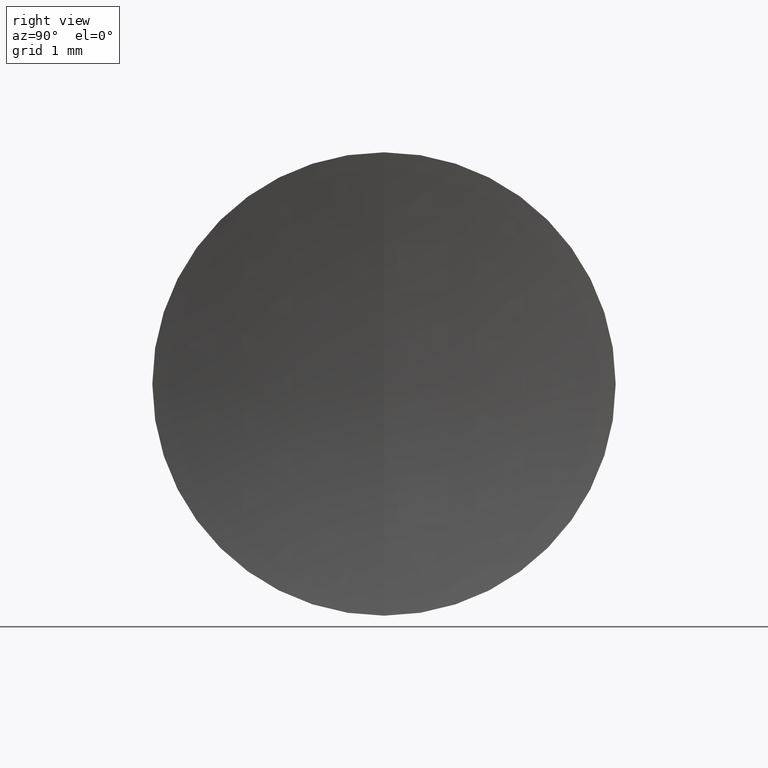
[diagram: clean part render]
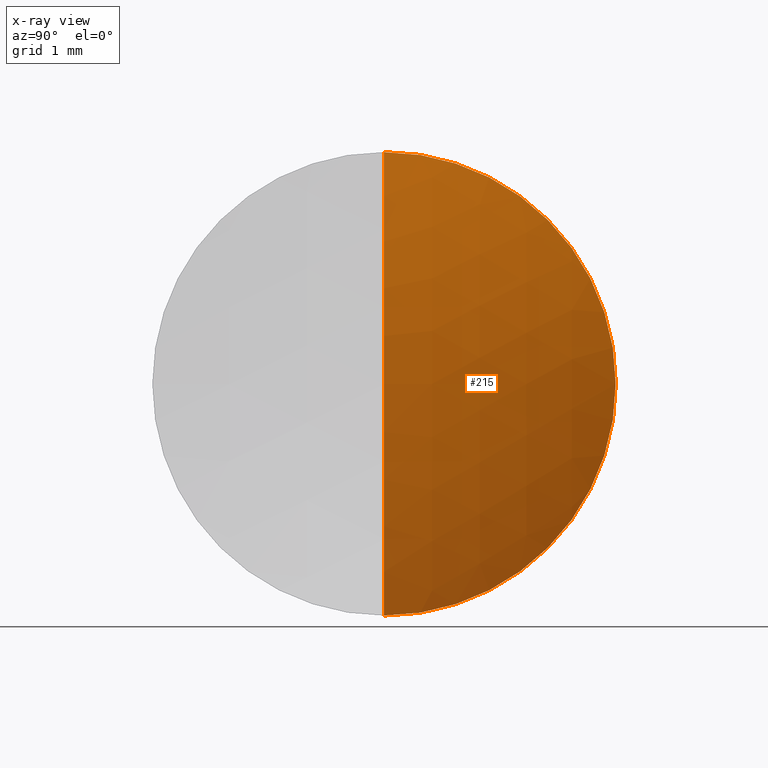
[diagram: x-ray — body ghosted, one internal face saturated and labeled with its STEP entity id]
A machine part, right view, then the same camera in x-ray: the body is ghosted and one INTERNAL B-rep face — a face not visible from any outside direction — is saturated and labeled: STEP entity #215.
In plain terms, the highlighted spherical surface has radius 5.45 mm.
Its self-contained STEP definition (entity closure, byte-faithful):
#28 = CARTESIAN_POINT ( 'NONE',  ( 3.936022484758546500, 0.0000000000000000000, 3.337162527676537600E-016 ) ) ;
#35 = DIRECTION ( 'NONE',  ( -0.0000000000000000000, 1.000000000000000000, 1.224646799147353200E-016 ) ) ;
#37 = EDGE_CURVE ( 'NONE', #228, #73, #151, .T. ) ;
#47 = AXIS2_PLACEMENT_3D ( 'NONE', #233, #35, #152 ) ;
#54 = ORIENTED_EDGE ( 'NONE', *, *, #162, .F. ) ;
#56 = AXIS2_PLACEMENT_3D ( 'NONE', #116, #127, #85 ) ;
#65 = DIRECTION ( 'NONE',  ( -1.000000000000000000, -0.0000000000000000000, -0.0000000000000000000 ) ) ;
#69 = CARTESIAN_POINT ( 'NONE',  ( 3.328800613064653900, 3.061616997868383100E-016, -2.500000000000000000 ) ) ;
#72 = AXIS2_PLACEMENT_3D ( 'NONE', #261, #65, #238 ) ;
#73 = VERTEX_POINT ( 'NONE', #69 ) ;
#85 = DIRECTION ( 'NONE',  ( 0.0000000000000000000, 0.0000000000000000000, 1.000000000000000000 ) ) ;
#98 = CARTESIAN_POINT ( 'NONE',  ( -1.513977515241453200, 0.0000000000000000000, 0.0000000000000000000 ) ) ;
#116 = CARTESIAN_POINT ( 'NONE',  ( -1.513977515241453200, 0.0000000000000000000, 0.0000000000000000000 ) ) ;
#125 = EDGE_LOOP ( 'NONE', ( #54, #312, #246 ) ) ;
#126 = FACE_OUTER_BOUND ( 'NONE', #125, .T. ) ;
#127 = DIRECTION ( 'NONE',  ( 0.0000000000000000000, 1.000000000000000000, 0.0000000000000000000 ) ) ;
#139 = CIRCLE ( 'NONE', #147, 5.450000000000000200 ) ;
#147 = AXIS2_PLACEMENT_3D ( 'NONE', #98, #212, #214 ) ;
#151 = CIRCLE ( 'NONE', #47, 5.450000000000000200 ) ;
#152 = DIRECTION ( 'NONE',  ( 0.0000000000000000000, -1.224646799147353200E-016, 1.000000000000000000 ) ) ;
#162 = EDGE_CURVE ( 'NONE', #228, #283, #139, .T. ) ;
#212 = DIRECTION ( 'NONE',  ( 0.0000000000000000000, -1.000000000000000000, 0.0000000000000000000 ) ) ;
#214 = DIRECTION ( 'NONE',  ( 0.0000000000000000000, 0.0000000000000000000, -1.000000000000000000 ) ) ;
#215 = ADVANCED_FACE ( 'NONE', ( #126 ), #279, .T. ) ;
#228 = VERTEX_POINT ( 'NONE', #28 ) ;
#233 = CARTESIAN_POINT ( 'NONE',  ( -1.513977515241453200, 0.0000000000000000000, 0.0000000000000000000 ) ) ;
#238 = DIRECTION ( 'NONE',  ( 0.0000000000000000000, 0.0000000000000000000, 1.000000000000000000 ) ) ;
#246 = ORIENTED_EDGE ( 'NONE', *, *, #300, .F. ) ;
#255 = CIRCLE ( 'NONE', #72, 2.500000000000000000 ) ;
#261 = CARTESIAN_POINT ( 'NONE',  ( 3.328800613064653900, 0.0000000000000000000, 0.0000000000000000000 ) ) ;
#263 = CARTESIAN_POINT ( 'NONE',  ( 3.328800613064653900, 0.0000000000000000000, 2.500000000000000000 ) ) ;
#279 = SPHERICAL_SURFACE ( 'NONE', #56, 5.450000000000000200 ) ;
#283 = VERTEX_POINT ( 'NONE', #263 ) ;
#300 = EDGE_CURVE ( 'NONE', #283, #73, #255, .T. ) ;
#312 = ORIENTED_EDGE ( 'NONE', *, *, #37, .T. ) ;